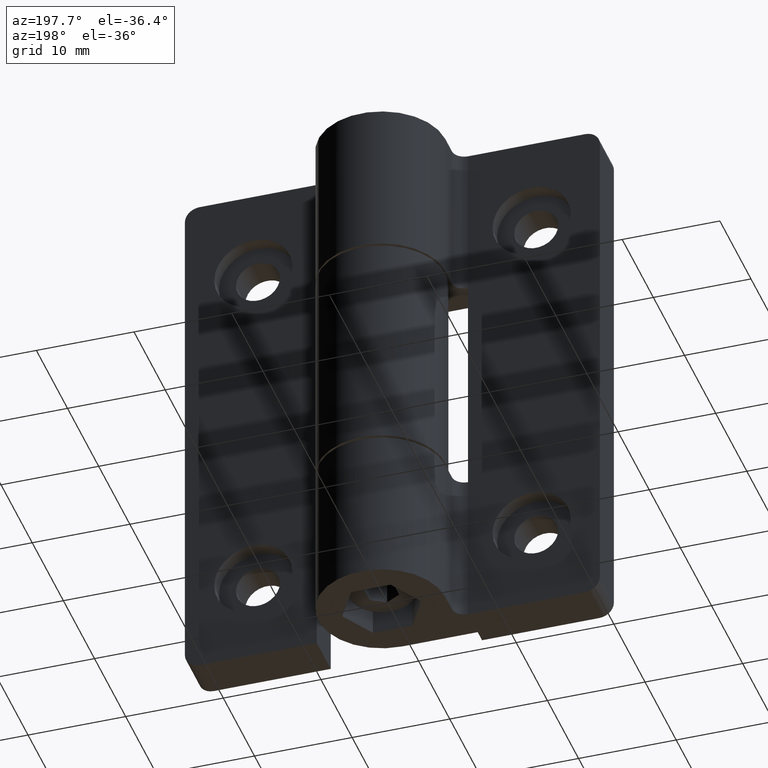
[diagram: clean part render]
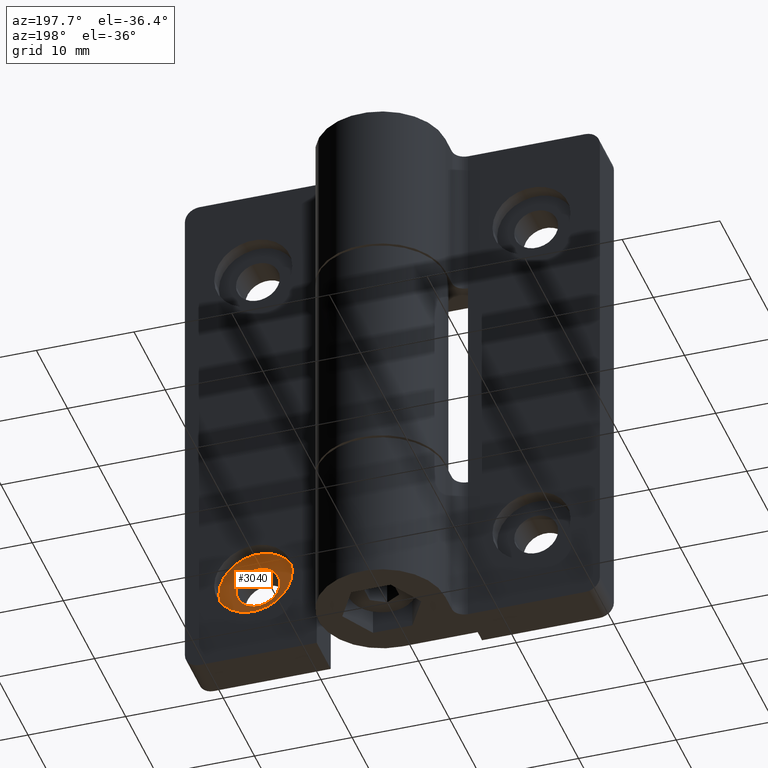
[diagram: same view with one face highlighted and labeled with its STEP entity id]
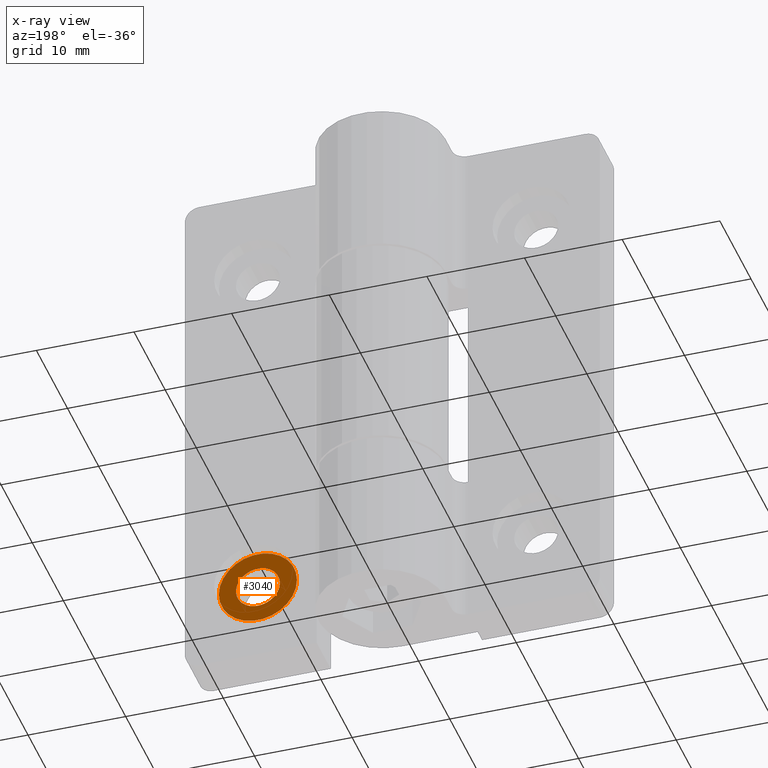
[diagram: x-ray of the same camera — body ghosted, the highlighted face saturated]
A machine part, auxiliary view. The second image highlights one B-rep face of the part: STEP entity #3040.
The next image is the same camera in x-ray: the body ghosted, the highlighted face saturated — about 0% of this face is hidden behind the body in this view.
In plain terms, the highlighted planar face has unit normal (-0, -1, 0).
Its self-contained STEP definition (entity closure, byte-faithful):
#343=FACE_BOUND('',#665,.T.);
#415=PLANE('',#3221);
#522=FACE_OUTER_BOUND('',#664,.T.);
#664=EDGE_LOOP('',(#2871));
#665=EDGE_LOOP('',(#2872));
#1051=CIRCLE('',#3222,4.);
#1052=CIRCLE('',#3223,2.25);
#1454=VERTEX_POINT('',#36045);
#1455=VERTEX_POINT('',#36047);
#1935=EDGE_CURVE('',#1454,#1454,#1051,.T.);
#1936=EDGE_CURVE('',#1455,#1455,#1052,.T.);
#2871=ORIENTED_EDGE('',*,*,#1935,.F.);
#2872=ORIENTED_EDGE('',*,*,#1936,.T.);
#3040=ADVANCED_FACE('',(#522,#343),#415,.F.);
#3221=AXIS2_PLACEMENT_3D('',#36044,#3727,#3728);
#3222=AXIS2_PLACEMENT_3D('',#36046,#3729,#3730);
#3223=AXIS2_PLACEMENT_3D('',#36048,#3731,#3732);
#3727=DIRECTION('center_axis',(0.,0.,-1.));
#3728=DIRECTION('ref_axis',(1.,0.,0.));
#3729=DIRECTION('center_axis',(0.,0.,-1.));
#3730=DIRECTION('ref_axis',(1.,0.,0.));
#3731=DIRECTION('center_axis',(0.,0.,-1.));
#3732=DIRECTION('ref_axis',(1.,0.,0.));
#36044=CARTESIAN_POINT('Origin',(57.3758813901435,-18.5,3.));
#36045=CARTESIAN_POINT('',(53.5258813901434,-18.5,3.));
#36046=CARTESIAN_POINT('Origin',(57.5258813901435,-18.5,3.));
#36047=CARTESIAN_POINT('',(55.2758813901435,-18.5,3.));
#36048=CARTESIAN_POINT('Origin',(57.5258813901435,-18.5,3.));